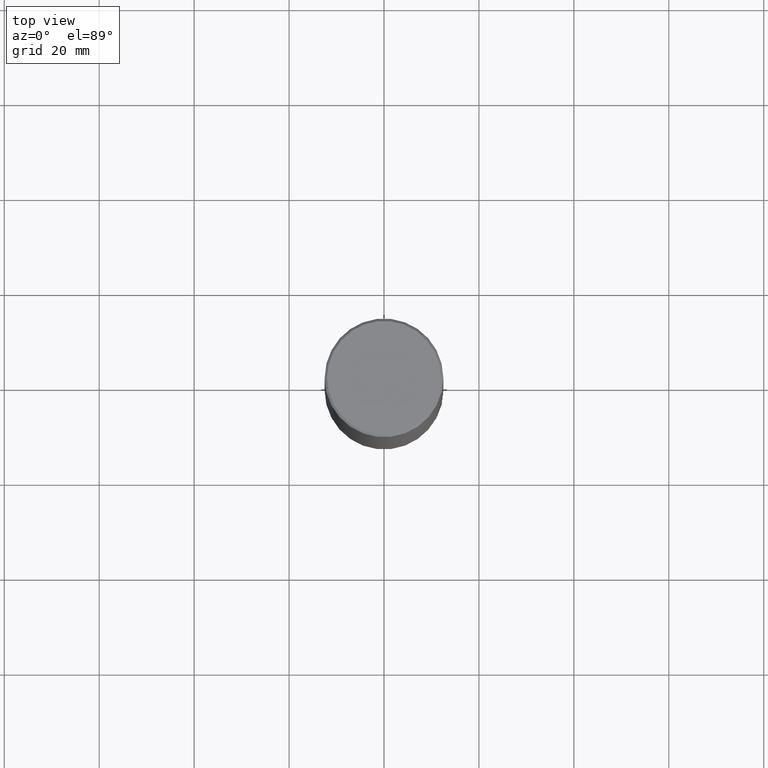
[diagram: clean part render]
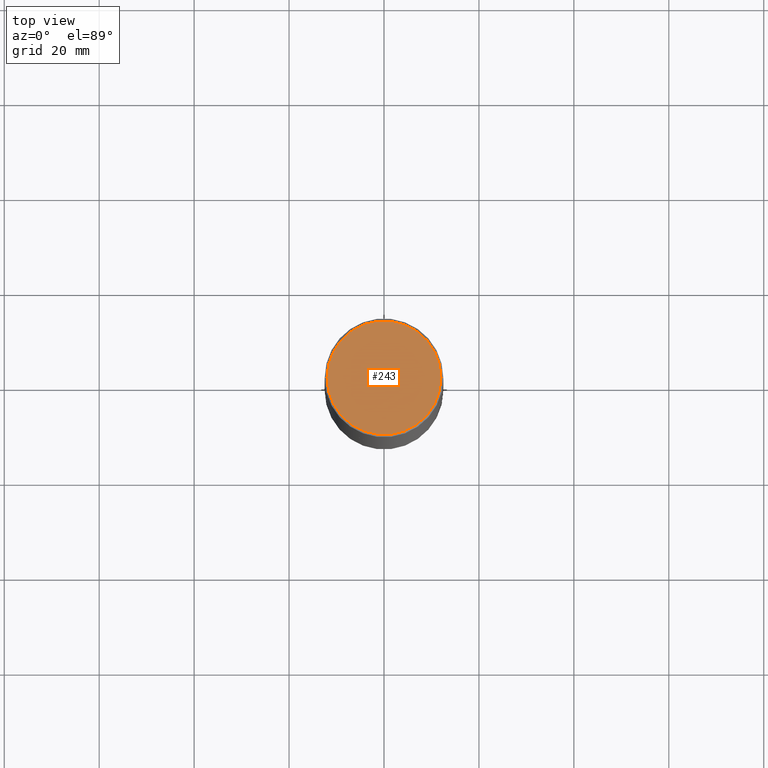
[diagram: same view with one face highlighted and labeled with its STEP entity id]
A machine part, top view. The second image highlights one B-rep face of the part: STEP entity #243.
In plain terms, the highlighted planar face has unit normal (0, -0, -1).
Its self-contained STEP definition (entity closure, byte-faithful):
#2 = DIRECTION ( 'NONE',  ( 1.000000000000000000, -6.982962677686266711E-15, 4.875605319575677862E-29 ) ) ;
#3 = DIRECTION ( 'NONE',  ( -2.445468806185136597E-29, 3.491481338843145583E-15, 1.000000000000000000 ) ) ;
#4 = CARTESIAN_POINT ( 'NONE',  ( 4.071020515907357082E-45, -5.812338364483744108E-31, -1.664719871139160491E-16 ) ) ;
#12 = AXIS2_PLACEMENT_3D ( 'NONE', #4, #268, #2 ) ;
#19 = ORIENTED_EDGE ( 'NONE', *, *, #355, .T. ) ;
#98 = EDGE_CURVE ( 'NONE', #278, #223, #364, .T. ) ;
#110 = CIRCLE ( 'NONE', #386, 0.4721500000000000696 ) ;
#136 = DIRECTION ( 'NONE',  ( -1.000000000000000000, 6.982962677686265922E-15, -4.876176775795935793E-29 ) ) ;
#137 = DIRECTION ( 'NONE',  ( 1.000000000000000000, -6.982962677686266711E-15, 4.875605319575677862E-29 ) ) ;
#154 = ORIENTED_EDGE ( 'NONE', *, *, #98, .T. ) ;
#166 = CARTESIAN_POINT ( 'NONE',  ( 3.297005828269570364E-15, 0.4721500000000000696, -1.731738907691749419E-15 ) ) ;
#167 = EDGE_LOOP ( 'NONE', ( #154, #19 ) ) ;
#202 = CARTESIAN_POINT ( 'NONE',  ( 4.071020515907357082E-45, -5.812338364483744108E-31, -1.664719871139160491E-16 ) ) ;
#223 = VERTEX_POINT ( 'NONE', #229 ) ;
#229 = CARTESIAN_POINT ( 'NONE',  ( 0.4721500000000000696, -3.342703923013975763E-15, -1.664719871138928270E-16 ) ) ;
#243 = ADVANCED_FACE ( 'NONE', ( #284 ), #411, .F. ) ;
#256 = CARTESIAN_POINT ( 'NONE',  ( -0.4721500000000000696, 3.331920641658001618E-15, -1.664719871139392219E-16 ) ) ;
#268 = DIRECTION ( 'NONE',  ( -2.445468806185136597E-29, 3.491481338843145583E-15, 1.000000000000000000 ) ) ;
#278 = VERTEX_POINT ( 'NONE', #256 ) ;
#284 = FACE_OUTER_BOUND ( 'NONE', #167, .T. ) ;
#293 = DIRECTION ( 'NONE',  ( 2.438088387897960049E-29, -3.491481338843145188E-15, -1.000000000000000000 ) ) ;
#355 = EDGE_CURVE ( 'NONE', #223, #278, #110, .T. ) ;
#364 = CIRCLE ( 'NONE', #12, 0.4721500000000000696 ) ;
#385 = AXIS2_PLACEMENT_3D ( 'NONE', #166, #293, #136 ) ;
#386 = AXIS2_PLACEMENT_3D ( 'NONE', #202, #3, #137 ) ;
#411 = PLANE ( 'NONE',  #385 ) ;